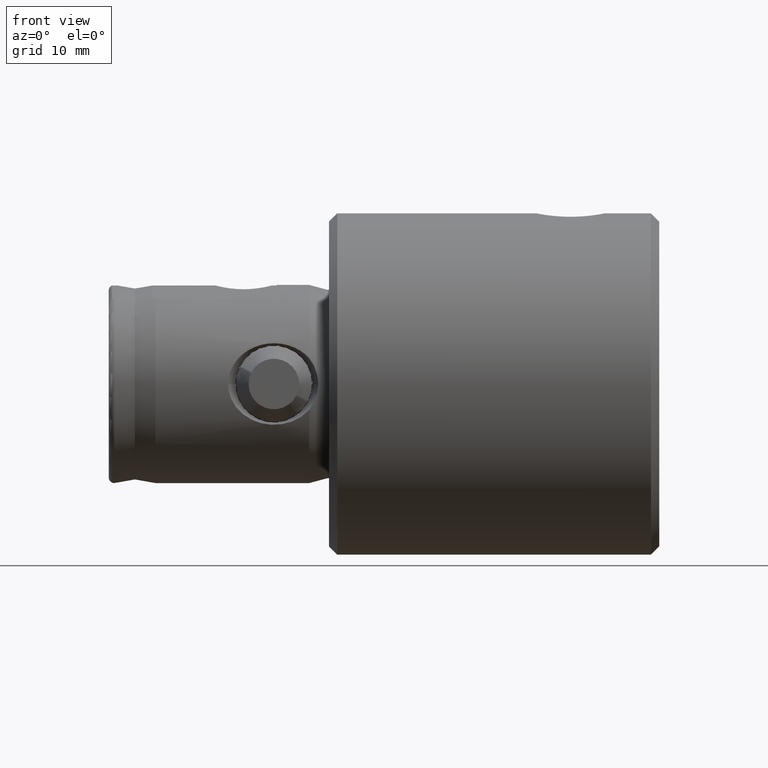
[diagram: clean part render]
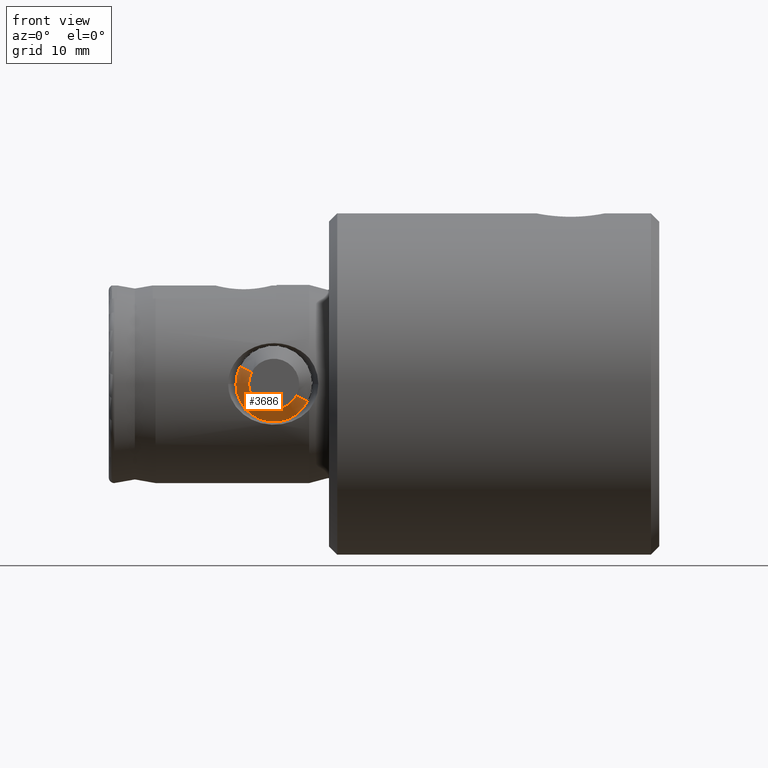
[diagram: same view with one face highlighted and labeled with its STEP entity id]
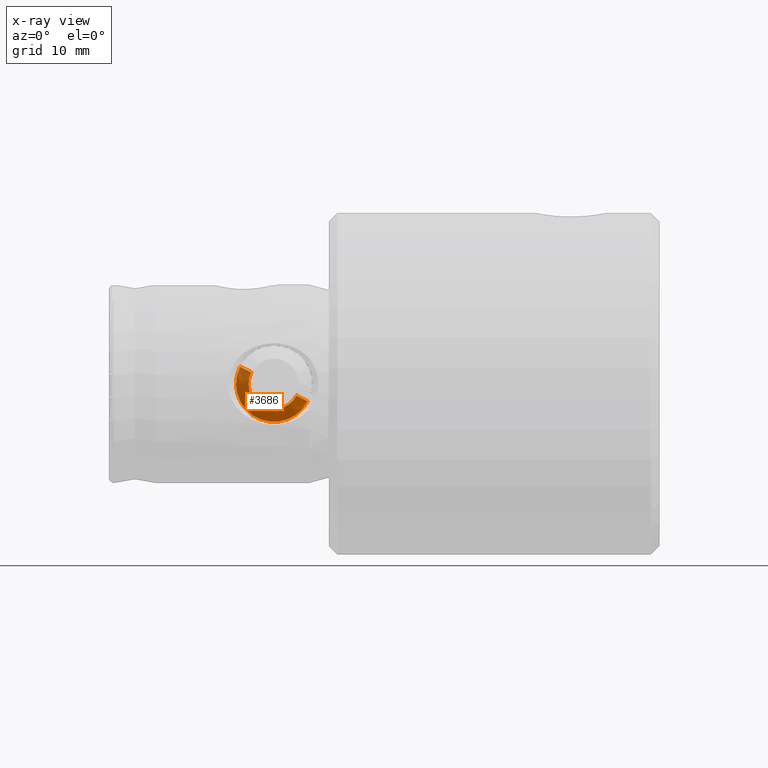
[diagram: x-ray of the same camera — body ghosted, the highlighted face saturated]
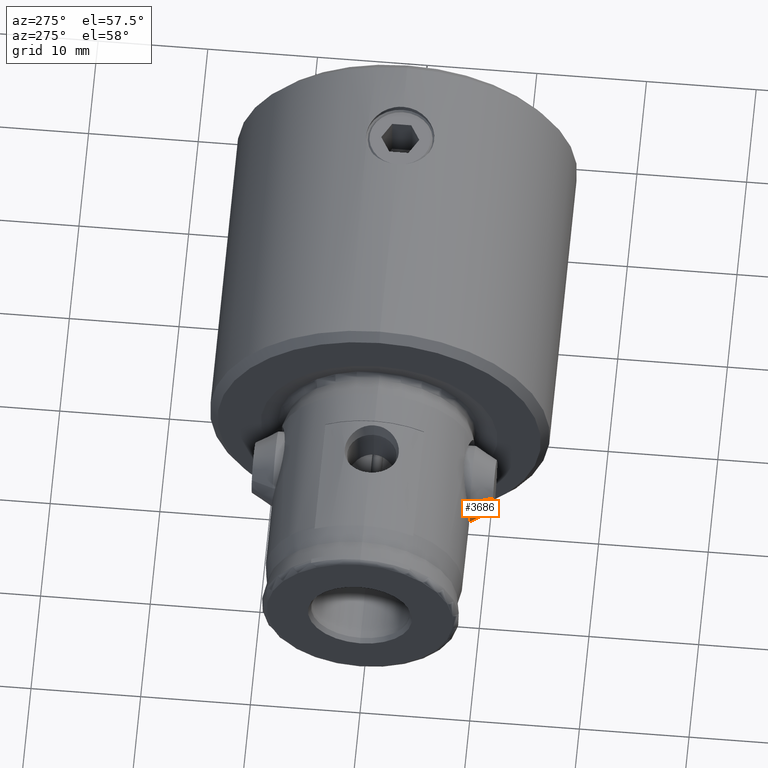
[diagram: same view with one face highlighted and labeled with its STEP entity id]
A machine part, front view. The second image highlights one B-rep face of the part: STEP entity #3686.
The next image is the same camera in x-ray: the body ghosted, the highlighted face saturated — about 0% of this face is hidden behind the body in this view.
A second angle (auxiliary view) of the same face is appended — the face is thin or edge-on in the first view.
In plain terms, the highlighted conical surface has half-angle 30 deg.
Its self-contained STEP definition (entity closure, byte-faithful):
#16 = DIRECTION ( 'NONE',  ( 1.000000000000000000, 0.0000000000000000000, 1.589329154676898000E-031 ) ) ;
#144 = VERTEX_POINT ( 'NONE', #3019 ) ;
#175 = EDGE_LOOP ( 'NONE', ( #1456, #4163, #226, #2528 ) ) ;
#226 = ORIENTED_EDGE ( 'NONE', *, *, #4029, .F. ) ;
#436 = CARTESIAN_POINT ( 'NONE',  ( 0.0000000000000000000, 0.0000000000000000000, 0.0000000000000000000 ) ) ;
#455 = DIRECTION ( 'NONE',  ( -1.589329154676898000E-031, 2.716998966044227300E-047, -1.000000000000000000 ) ) ;
#678 = VERTEX_POINT ( 'NONE', #1509 ) ;
#786 = CARTESIAN_POINT ( 'NONE',  ( 2.000000000000008900, 4.225031457058368800E-016, 3.450000000000000200 ) ) ;
#1134 = CARTESIAN_POINT ( 'NONE',  ( 2.000000000000008900, 0.0000000000000000000, 3.178658309353807800E-031 ) ) ;
#1208 = VERTEX_POINT ( 'NONE', #4037 ) ;
#1280 = VECTOR ( 'NONE', #2576, 1000.000000000000200 ) ;
#1401 = EDGE_CURVE ( 'NONE', #144, #2640, #2212, .T. ) ;
#1431 = CARTESIAN_POINT ( 'NONE',  ( 2.000000000000008900, 9.373646432852587100E-047, -3.450000000000000200 ) ) ;
#1456 = ORIENTED_EDGE ( 'NONE', *, *, #4035, .F. ) ;
#1509 = CARTESIAN_POINT ( 'NONE',  ( 2.000000000000008900, 4.225031457058368800E-016, 3.450000000000000200 ) ) ;
#1518 = CIRCLE ( 'NONE', #3748, 3.450000000000000200 ) ;
#1968 = DIRECTION ( 'NONE',  ( 0.0000000000000000000, 2.716998966044227800E-047, -1.000000000000000000 ) ) ;
#2212 = LINE ( 'NONE', #3869, #1280 ) ;
#2228 = CIRCLE ( 'NONE', #3323, 2.295299461620749200 ) ;
#2334 = VECTOR ( 'NONE', #3048, 1000.000000000000200 ) ;
#2423 = DIRECTION ( 'NONE',  ( 0.0000000000000000000, 2.716998966044227800E-047, -1.000000000000000000 ) ) ;
#2451 = LINE ( 'NONE', #786, #2334 ) ;
#2528 = ORIENTED_EDGE ( 'NONE', *, *, #1401, .F. ) ;
#2541 = CONICAL_SURFACE ( 'NONE', #4165, 3.450000000000000200, 0.5235987755982968200 ) ;
#2576 = DIRECTION ( 'NONE',  ( 0.8660254037844396000, 1.358499483022108800E-047, -0.4999999999999982200 ) ) ;
#2640 = VERTEX_POINT ( 'NONE', #1431 ) ;
#2799 = DIRECTION ( 'NONE',  ( -1.000000000000000000, -0.0000000000000000000, -1.589329154676898000E-031 ) ) ;
#2962 = FACE_OUTER_BOUND ( 'NONE', #175, .T. ) ;
#3019 = CARTESIAN_POINT ( 'NONE',  ( -3.647986353068044500E-031, 6.236326263985447200E-047, -2.295299461620749200 ) ) ;
#3048 = DIRECTION ( 'NONE',  ( 0.8660254037844396000, 6.123233995736743800E-017, 0.4999999999999982200 ) ) ;
#3323 = AXIS2_PLACEMENT_3D ( 'NONE', #436, #2799, #455 ) ;
#3474 = EDGE_CURVE ( 'NONE', #1208, #678, #2451, .T. ) ;
#3547 = CARTESIAN_POINT ( 'NONE',  ( 2.000000000000008900, 0.0000000000000000000, 3.178658309353807800E-031 ) ) ;
#3686 = ADVANCED_FACE ( 'NONE', ( #2962 ), #2541, .T. ) ;
#3748 = AXIS2_PLACEMENT_3D ( 'NONE', #1134, #3753, #2423 ) ;
#3753 = DIRECTION ( 'NONE',  ( 1.000000000000000000, 0.0000000000000000000, 1.589329154676898000E-031 ) ) ;
#3869 = CARTESIAN_POINT ( 'NONE',  ( 2.000000000000008900, 9.373646432852587100E-047, -3.450000000000000200 ) ) ;
#4029 = EDGE_CURVE ( 'NONE', #2640, #678, #1518, .T. ) ;
#4035 = EDGE_CURVE ( 'NONE', #1208, #144, #2228, .T. ) ;
#4037 = CARTESIAN_POINT ( 'NONE',  ( -3.647986353068044500E-031, 3.517981297908431500E-016, 2.295299461620749200 ) ) ;
#4163 = ORIENTED_EDGE ( 'NONE', *, *, #3474, .T. ) ;
#4165 = AXIS2_PLACEMENT_3D ( 'NONE', #3547, #16, #1968 ) ;